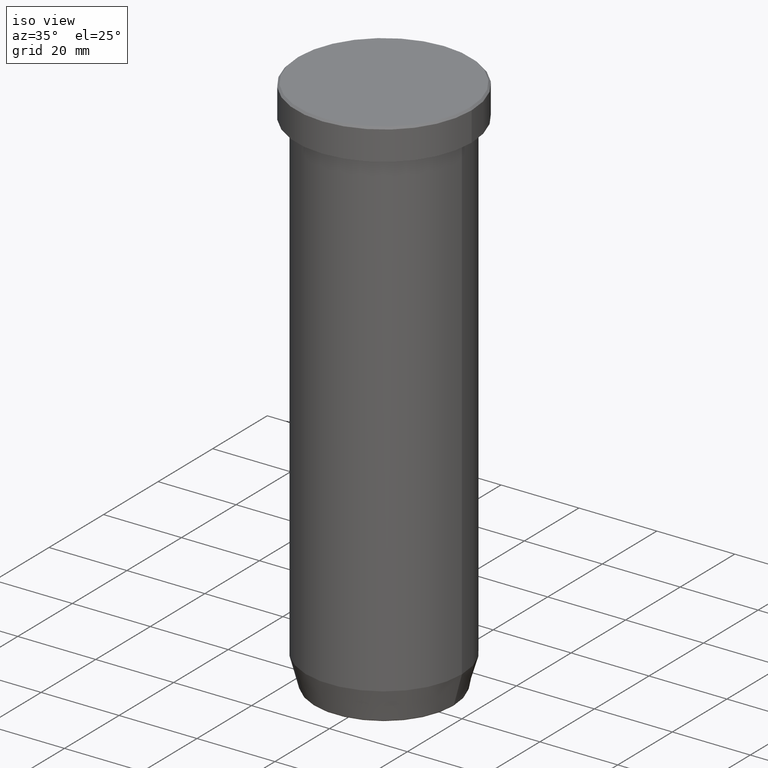
[diagram: clean part render]
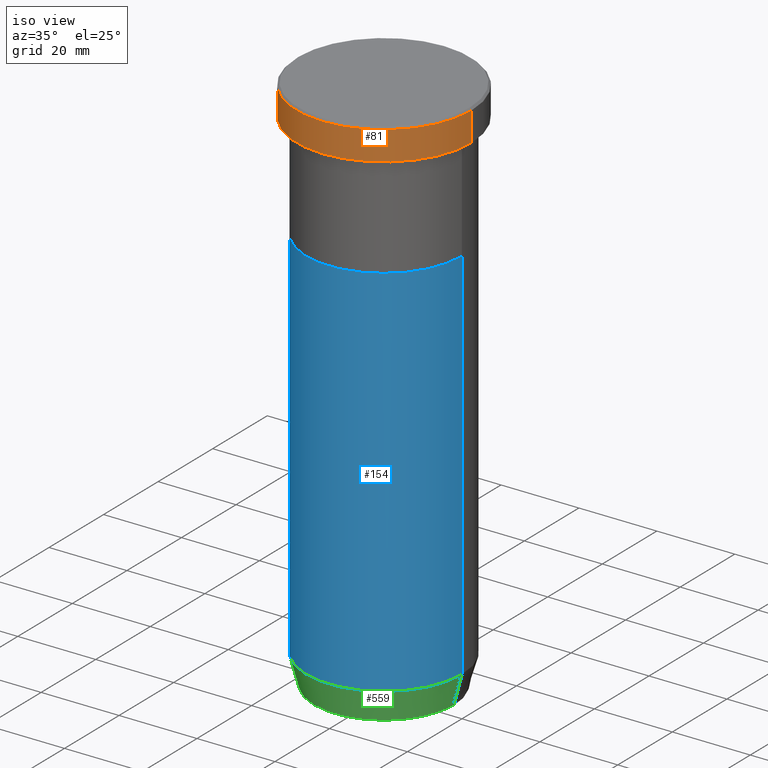
[diagram: same view with three faces highlighted in distinct colors, each labeled with its STEP entity id]
A machine part, iso view with three faces highlighted in distinct colors.
Their STEP definitions:

[orange] entity #81 — the highlighted cylindrical surface (partial cylindrical patch) has radius 22.5 mm, axis along (-0, -0, 1).
#7 = DIRECTION ( 'NONE',  ( -0.000000000000000000, -0.000000000000000000, 1.000000000000000000 ) ) ;
#12 = ORIENTED_EDGE ( 'NONE', *, *, #471, .T. ) ;
#65 = DIRECTION ( 'NONE',  ( -0.000000000000000000, -0.000000000000000000, 1.000000000000000000 ) ) ;
#69 = CYLINDRICAL_SURFACE ( 'NONE', #79, 22.50000000000000000 ) ;
#72 = AXIS2_PLACEMENT_3D ( 'NONE', #442, #352, #546 ) ;
#79 = AXIS2_PLACEMENT_3D ( 'NONE', #204, #200, #248 ) ;
#81 = ADVANCED_FACE ( 'NONE', ( #527 ), #69, .T. ) ;
#98 = VERTEX_POINT ( 'NONE', #379 ) ;
#101 = VERTEX_POINT ( 'NONE', #569 ) ;
#127 = CIRCLE ( 'NONE', #418, 22.50000000000000000 ) ;
#128 = DIRECTION ( 'NONE',  ( -0.000000000000000000, -0.000000000000000000, 1.000000000000000000 ) ) ;
#141 = CARTESIAN_POINT ( 'NONE',  ( -22.50000000000000000, 2.755455298081544778E-15, -7.999999999999998224 ) ) ;
#145 = EDGE_CURVE ( 'NONE', #465, #101, #342, .T. ) ;
#147 = ORIENTED_EDGE ( 'NONE', *, *, #199, .T. ) ;
#193 = DIRECTION ( 'NONE',  ( 1.000000000000000000, 0.000000000000000000, 0.000000000000000000 ) ) ;
#199 = EDGE_CURVE ( 'NONE', #98, #101, #316, .T. ) ;
#200 = DIRECTION ( 'NONE',  ( -0.000000000000000000, -0.000000000000000000, 1.000000000000000000 ) ) ;
#201 = VECTOR ( 'NONE', #128, 1000.000000000000000 ) ;
#204 = CARTESIAN_POINT ( 'NONE',  ( 0.000000000000000000, 0.000000000000000000, 0.000000000000000000 ) ) ;
#244 = VECTOR ( 'NONE', #65, 1000.000000000000000 ) ;
#248 = DIRECTION ( 'NONE',  ( 1.000000000000000000, 0.000000000000000000, 0.000000000000000000 ) ) ;
#252 = EDGE_CURVE ( 'NONE', #508, #98, #535, .T. ) ;
#259 = CARTESIAN_POINT ( 'NONE',  ( 22.50000000000000000, 0.000000000000000000, 0.000000000000000000 ) ) ;
#316 = CIRCLE ( 'NONE', #72, 22.50000000000000000 ) ;
#342 = LINE ( 'NONE', #526, #244 ) ;
#352 = DIRECTION ( 'NONE',  ( 0.000000000000000000, 0.000000000000000000, -1.000000000000000000 ) ) ;
#379 = CARTESIAN_POINT ( 'NONE',  ( 22.50000000000000000, 0.000000000000000000, -0.5000000000000073275 ) ) ;
#380 = CARTESIAN_POINT ( 'NONE',  ( 22.50000000000000000, 0.000000000000000000, -7.999999999999998224 ) ) ;
#418 = AXIS2_PLACEMENT_3D ( 'NONE', #419, #7, #193 ) ;
#419 = CARTESIAN_POINT ( 'NONE',  ( 0.000000000000000000, 0.000000000000000000, -7.999999999999998224 ) ) ;
#442 = CARTESIAN_POINT ( 'NONE',  ( 0.000000000000000000, 0.000000000000000000, -0.5000000000000073275 ) ) ;
#465 = VERTEX_POINT ( 'NONE', #141 ) ;
#471 = EDGE_CURVE ( 'NONE', #465, #508, #127, .T. ) ;
#508 = VERTEX_POINT ( 'NONE', #380 ) ;
#526 = CARTESIAN_POINT ( 'NONE',  ( -22.50000000000000000, 2.755455298081544778E-15, 0.000000000000000000 ) ) ;
#527 = FACE_OUTER_BOUND ( 'NONE', #592, .T. ) ;
#535 = LINE ( 'NONE', #259, #201 ) ;
#546 = DIRECTION ( 'NONE',  ( 1.000000000000000000, 0.000000000000000000, 0.000000000000000000 ) ) ;
#562 = ORIENTED_EDGE ( 'NONE', *, *, #252, .T. ) ;
#569 = CARTESIAN_POINT ( 'NONE',  ( -22.50000000000000000, 2.755455298081544778E-15, -0.5000000000000073275 ) ) ;
#584 = ORIENTED_EDGE ( 'NONE', *, *, #145, .F. ) ;
#592 = EDGE_LOOP ( 'NONE', ( #584, #12, #562, #147 ) ) ;

[blue] entity #154 — the highlighted cylindrical surface (partial cylindrical patch) has radius 20 mm, axis along (-0, -0, 1).
#2 = VERTEX_POINT ( 'NONE', #518 ) ;
#22 = VECTOR ( 'NONE', #161, 1000.000000000000000 ) ;
#27 = EDGE_CURVE ( 'NONE', #2, #327, #236, .T. ) ;
#30 = ORIENTED_EDGE ( 'NONE', *, *, #298, .T. ) ;
#31 = CARTESIAN_POINT ( 'NONE',  ( -20.00000000000000355, 2.449293598294706907E-15, 0.000000000000000000 ) ) ;
#34 = CARTESIAN_POINT ( 'NONE',  ( 20.00000000000000000, 0.000000000000000000, -35.00000000000000000 ) ) ;
#53 = ORIENTED_EDGE ( 'NONE', *, *, #27, .F. ) ;
#84 = VERTEX_POINT ( 'NONE', #381 ) ;
#103 = CARTESIAN_POINT ( 'NONE',  ( -20.00000000000000355, 2.449293598294706907E-15, -132.0000000000000000 ) ) ;
#107 = FACE_OUTER_BOUND ( 'NONE', #441, .T. ) ;
#109 = CIRCLE ( 'NONE', #444, 20.00000000000000355 ) ;
#111 = LINE ( 'NONE', #114, #22 ) ;
#114 = CARTESIAN_POINT ( 'NONE',  ( 20.00000000000000355, 0.000000000000000000, 0.000000000000000000 ) ) ;
#151 = EDGE_CURVE ( 'NONE', #84, #327, #111, .T. ) ;
#154 = ADVANCED_FACE ( 'NONE', ( #107 ), #284, .T. ) ;
#156 = DIRECTION ( 'NONE',  ( 1.000000000000000000, 0.000000000000000000, 0.000000000000000000 ) ) ;
#157 = AXIS2_PLACEMENT_3D ( 'NONE', #573, #430, #156 ) ;
#161 = DIRECTION ( 'NONE',  ( -0.000000000000000000, -0.000000000000000000, 1.000000000000000000 ) ) ;
#236 = CIRCLE ( 'NONE', #157, 20.00000000000000000 ) ;
#254 = DIRECTION ( 'NONE',  ( -0.000000000000000000, -0.000000000000000000, 1.000000000000000000 ) ) ;
#284 = CYLINDRICAL_SURFACE ( 'NONE', #295, 20.00000000000000355 ) ;
#291 = CARTESIAN_POINT ( 'NONE',  ( 0.000000000000000000, 0.000000000000000000, 0.000000000000000000 ) ) ;
#295 = AXIS2_PLACEMENT_3D ( 'NONE', #291, #338, #483 ) ;
#298 = EDGE_CURVE ( 'NONE', #492, #84, #109, .T. ) ;
#301 = LINE ( 'NONE', #31, #530 ) ;
#315 = EDGE_CURVE ( 'NONE', #492, #2, #301, .T. ) ;
#319 = ORIENTED_EDGE ( 'NONE', *, *, #151, .T. ) ;
#327 = VERTEX_POINT ( 'NONE', #34 ) ;
#338 = DIRECTION ( 'NONE',  ( -0.000000000000000000, -0.000000000000000000, 1.000000000000000000 ) ) ;
#381 = CARTESIAN_POINT ( 'NONE',  ( 20.00000000000000355, 0.000000000000000000, -132.0000000000000000 ) ) ;
#395 = DIRECTION ( 'NONE',  ( -0.000000000000000000, -0.000000000000000000, 1.000000000000000000 ) ) ;
#403 = CARTESIAN_POINT ( 'NONE',  ( 0.000000000000000000, 0.000000000000000000, -132.0000000000000000 ) ) ;
#420 = ORIENTED_EDGE ( 'NONE', *, *, #315, .F. ) ;
#430 = DIRECTION ( 'NONE',  ( -0.000000000000000000, -0.000000000000000000, 1.000000000000000000 ) ) ;
#441 = EDGE_LOOP ( 'NONE', ( #420, #30, #319, #53 ) ) ;
#444 = AXIS2_PLACEMENT_3D ( 'NONE', #403, #254, #587 ) ;
#483 = DIRECTION ( 'NONE',  ( 1.000000000000000000, 0.000000000000000000, 0.000000000000000000 ) ) ;
#492 = VERTEX_POINT ( 'NONE', #103 ) ;
#518 = CARTESIAN_POINT ( 'NONE',  ( -20.00000000000000000, 2.449293598294706513E-15, -35.00000000000000000 ) ) ;
#530 = VECTOR ( 'NONE', #395, 1000.000000000000000 ) ;
#573 = CARTESIAN_POINT ( 'NONE',  ( 0.000000000000000000, 0.000000000000000000, -35.00000000000000000 ) ) ;
#587 = DIRECTION ( 'NONE',  ( 1.000000000000000000, 0.000000000000000000, 0.000000000000000000 ) ) ;

[green] entity #559 — the highlighted conical surface has half-angle 15 deg.
#17 = CARTESIAN_POINT ( 'NONE',  ( -17.95570587970606979, 2.324116685748020582E-15, -139.6294095225512706 ) ) ;
#29 = CARTESIAN_POINT ( 'NONE',  ( -17.85640646055101399, 2.186779101618792051E-15, -140.0000000000000000 ) ) ;
#37 = DIRECTION ( 'NONE',  ( -0.000000000000000000, -0.000000000000000000, 1.000000000000000000 ) ) ;
#66 = CARTESIAN_POINT ( 'NONE',  ( 0.000000000000000000, 0.000000000000000000, -140.0000000000000000 ) ) ;
#82 = LINE ( 'NONE', #502, #137 ) ;
#84 = VERTEX_POINT ( 'NONE', #381 ) ;
#103 = CARTESIAN_POINT ( 'NONE',  ( -20.00000000000000355, 2.449293598294706907E-15, -132.0000000000000000 ) ) ;
#109 = CIRCLE ( 'NONE', #444, 20.00000000000000355 ) ;
#117 = AXIS2_PLACEMENT_3D ( 'NONE', #496, #37, #343 ) ;
#129 = ORIENTED_EDGE ( 'NONE', *, *, #298, .F. ) ;
#137 = VECTOR ( 'NONE', #488, 1000.000000000000114 ) ;
#173 = ORIENTED_EDGE ( 'NONE', *, *, #260, .F. ) ;
#182 = ORIENTED_EDGE ( 'NONE', *, *, #261, .T. ) ;
#246 = EDGE_CURVE ( 'NONE', #598, #392, #375, .T. ) ;
#254 = DIRECTION ( 'NONE',  ( -0.000000000000000000, -0.000000000000000000, 1.000000000000000000 ) ) ;
#260 = EDGE_CURVE ( 'NONE', #598, #492, #590, .T. ) ;
#261 = EDGE_CURVE ( 'NONE', #392, #84, #82, .T. ) ;
#269 = VECTOR ( 'NONE', #296, 1000.000000000000114 ) ;
#271 = ORIENTED_EDGE ( 'NONE', *, *, #246, .T. ) ;
#285 = DIRECTION ( 'NONE',  ( -0.000000000000000000, -0.000000000000000000, 1.000000000000000000 ) ) ;
#296 = DIRECTION ( 'NONE',  ( -0.2588190451025212391, 3.169619151431771721E-17, 0.9659258262890680902 ) ) ;
#298 = EDGE_CURVE ( 'NONE', #492, #84, #109, .T. ) ;
#343 = DIRECTION ( 'NONE',  ( -1.000000000000000000, 0.000000000000000000, 0.000000000000000000 ) ) ;
#375 = CIRCLE ( 'NONE', #117, 17.95570587970606979 ) ;
#381 = CARTESIAN_POINT ( 'NONE',  ( 20.00000000000000355, 0.000000000000000000, -132.0000000000000000 ) ) ;
#392 = VERTEX_POINT ( 'NONE', #422 ) ;
#403 = CARTESIAN_POINT ( 'NONE',  ( 0.000000000000000000, 0.000000000000000000, -132.0000000000000000 ) ) ;
#408 = CONICAL_SURFACE ( 'NONE', #560, 17.85640646055101399, 0.2617993877991499629 ) ;
#414 = EDGE_LOOP ( 'NONE', ( #173, #271, #182, #129 ) ) ;
#422 = CARTESIAN_POINT ( 'NONE',  ( 17.95570587970606979, 0.000000000000000000, -139.6294095225512706 ) ) ;
#444 = AXIS2_PLACEMENT_3D ( 'NONE', #403, #254, #587 ) ;
#488 = DIRECTION ( 'NONE',  ( 0.2588190451025212391, 0.000000000000000000, 0.9659258262890680902 ) ) ;
#492 = VERTEX_POINT ( 'NONE', #103 ) ;
#496 = CARTESIAN_POINT ( 'NONE',  ( 0.000000000000000000, 0.000000000000000000, -139.6294095225512706 ) ) ;
#502 = CARTESIAN_POINT ( 'NONE',  ( 17.85640646055101399, 0.000000000000000000, -140.0000000000000000 ) ) ;
#559 = ADVANCED_FACE ( 'NONE', ( #568 ), #408, .T. ) ;
#560 = AXIS2_PLACEMENT_3D ( 'NONE', #66, #285, #572 ) ;
#568 = FACE_OUTER_BOUND ( 'NONE', #414, .T. ) ;
#572 = DIRECTION ( 'NONE',  ( 1.000000000000000000, 0.000000000000000000, 0.000000000000000000 ) ) ;
#587 = DIRECTION ( 'NONE',  ( 1.000000000000000000, 0.000000000000000000, 0.000000000000000000 ) ) ;
#590 = LINE ( 'NONE', #29, #269 ) ;
#598 = VERTEX_POINT ( 'NONE', #17 ) ;